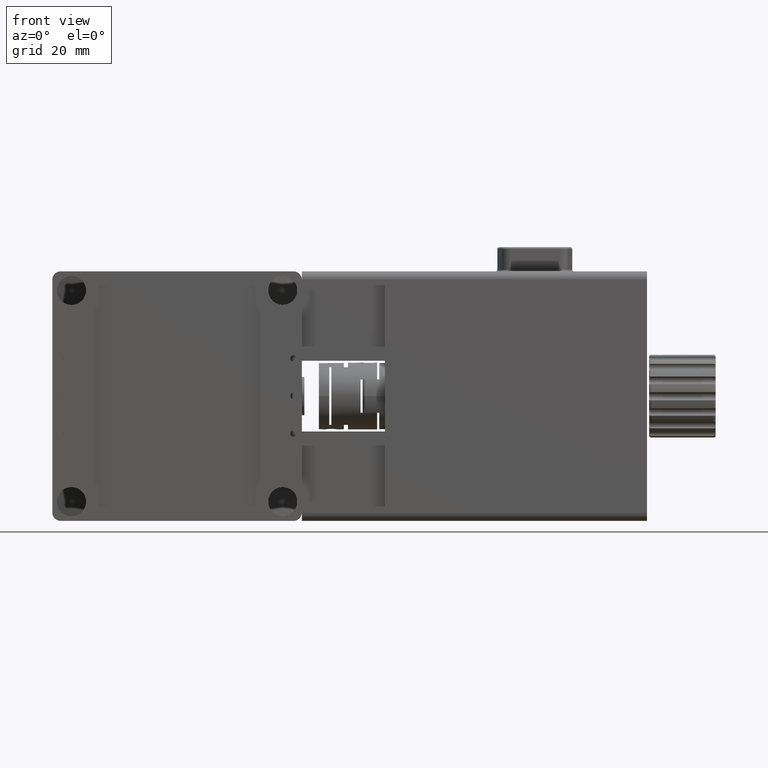
[diagram: clean part render]
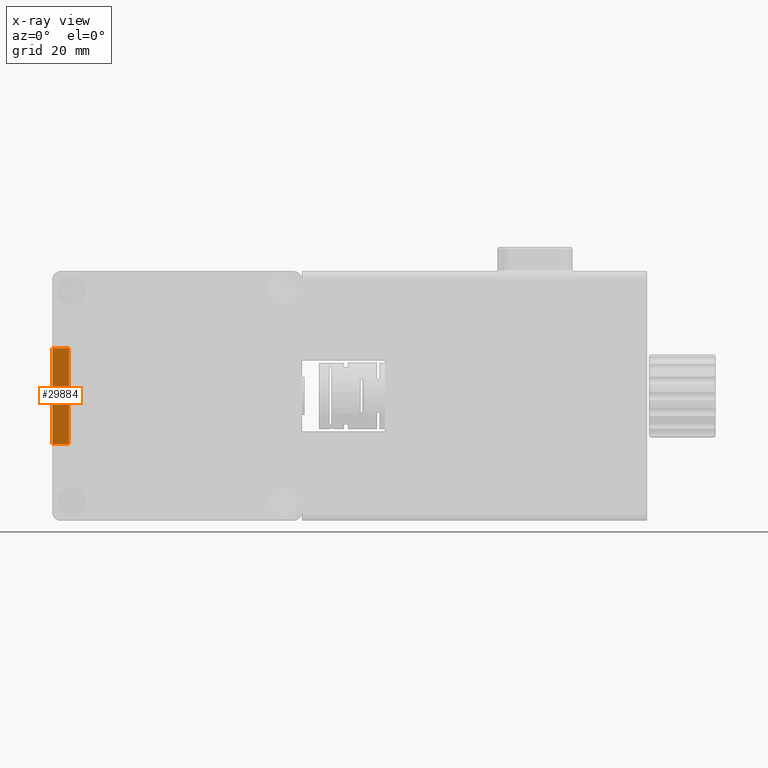
[diagram: x-ray — body ghosted, one internal face saturated and labeled with its STEP entity id]
A machine part, front view, then the same camera in x-ray: the body is ghosted and one INTERNAL B-rep face — a face not visible from any outside direction — is saturated and labeled: STEP entity #29884.
In plain terms, the highlighted planar face has unit normal (0, -1, -0).
Its self-contained STEP definition (entity closure, byte-faithful):
#219 = ORIENTED_EDGE ( 'NONE', *, *, #13738, .F. ) ;
#3434 = EDGE_CURVE ( 'NONE', #10303, #32983, #31161, .T. ) ;
#3717 = DIRECTION ( 'NONE',  ( -1.000000000000000000, -0.0000000000000000000, -0.0000000000000000000 ) ) ;
#6060 = LINE ( 'NONE', #26734, #30542 ) ;
#6631 = EDGE_CURVE ( 'NONE', #19208, #18202, #12810, .T. ) ;
#8513 = AXIS2_PLACEMENT_3D ( 'NONE', #31498, #8616, #14178 ) ;
#8616 = DIRECTION ( 'NONE',  ( 0.0000000000000000000, -1.000000000000000000, -1.508455196501570900E-016 ) ) ;
#10303 = VERTEX_POINT ( 'NONE', #34475 ) ;
#11325 = VECTOR ( 'NONE', #20963, 1000.000000000000000 ) ;
#12810 = LINE ( 'NONE', #27175, #37210 ) ;
#13738 = EDGE_CURVE ( 'NONE', #19208, #10303, #25783, .T. ) ;
#14178 = DIRECTION ( 'NONE',  ( 0.0000000000000000000, 1.508455196501570900E-016, -1.000000000000000000 ) ) ;
#14498 = CARTESIAN_POINT ( 'NONE',  ( -26.00000000000000000, 23.00000000000000000, 11.50000000000000700 ) ) ;
#14867 = ORIENTED_EDGE ( 'NONE', *, *, #6631, .T. ) ;
#17448 = EDGE_LOOP ( 'NONE', ( #34840, #219, #14867, #20149 ) ) ;
#18202 = VERTEX_POINT ( 'NONE', #14498 ) ;
#19208 = VERTEX_POINT ( 'NONE', #27723 ) ;
#20149 = ORIENTED_EDGE ( 'NONE', *, *, #20848, .T. ) ;
#20848 = EDGE_CURVE ( 'NONE', #18202, #32983, #6060, .T. ) ;
#20963 = DIRECTION ( 'NONE',  ( -1.000000000000000000, -0.0000000000000000000, -0.0000000000000000000 ) ) ;
#21508 = DIRECTION ( 'NONE',  ( 0.0000000000000000000, -1.508455196501570900E-016, 1.000000000000000000 ) ) ;
#23620 = CARTESIAN_POINT ( 'NONE',  ( -30.00000000000000000, 23.00000000000000000, 11.50000000000000700 ) ) ;
#24006 = FACE_OUTER_BOUND ( 'NONE', #17448, .T. ) ;
#24501 = CARTESIAN_POINT ( 'NONE',  ( -30.00000000000000000, 23.00000000000000000, 11.50000000000000700 ) ) ;
#25783 = LINE ( 'NONE', #32696, #11325 ) ;
#26734 = CARTESIAN_POINT ( 'NONE',  ( -26.00000000000000000, 23.00000000000000000, 11.50000000000000700 ) ) ;
#27175 = CARTESIAN_POINT ( 'NONE',  ( -26.00000000000000000, 23.00000000000000000, 11.50000000000000700 ) ) ;
#27723 = CARTESIAN_POINT ( 'NONE',  ( -26.00000000000000000, 22.99999999999999600, -11.50000000000000000 ) ) ;
#28004 = VECTOR ( 'NONE', #30042, 1000.000000000000000 ) ;
#29884 = ADVANCED_FACE ( 'NONE', ( #24006 ), #31847, .T. ) ;
#30042 = DIRECTION ( 'NONE',  ( 0.0000000000000000000, -1.508455196501570900E-016, 1.000000000000000000 ) ) ;
#30542 = VECTOR ( 'NONE', #3717, 1000.000000000000000 ) ;
#31161 = LINE ( 'NONE', #24501, #28004 ) ;
#31498 = CARTESIAN_POINT ( 'NONE',  ( -26.00000000000000000, 23.00000000000000000, 11.50000000000000700 ) ) ;
#31847 = PLANE ( 'NONE',  #8513 ) ;
#32696 = CARTESIAN_POINT ( 'NONE',  ( -26.00000000000000000, 22.99999999999999600, -11.50000000000000000 ) ) ;
#32983 = VERTEX_POINT ( 'NONE', #23620 ) ;
#34475 = CARTESIAN_POINT ( 'NONE',  ( -30.00000000000000000, 22.99999999999999600, -11.50000000000000000 ) ) ;
#34840 = ORIENTED_EDGE ( 'NONE', *, *, #3434, .F. ) ;
#37210 = VECTOR ( 'NONE', #21508, 1000.000000000000000 ) ;